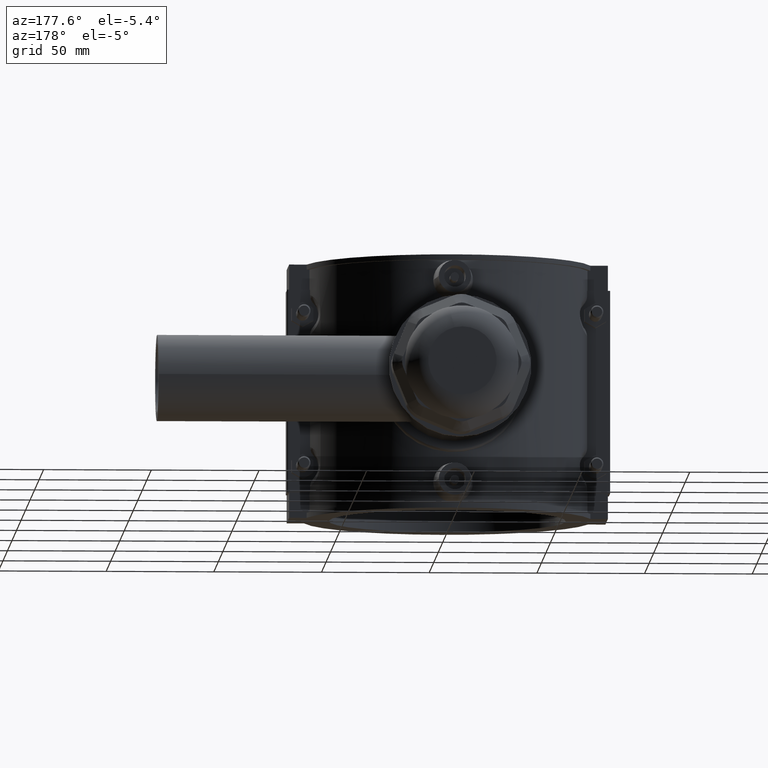
[diagram: clean part render]
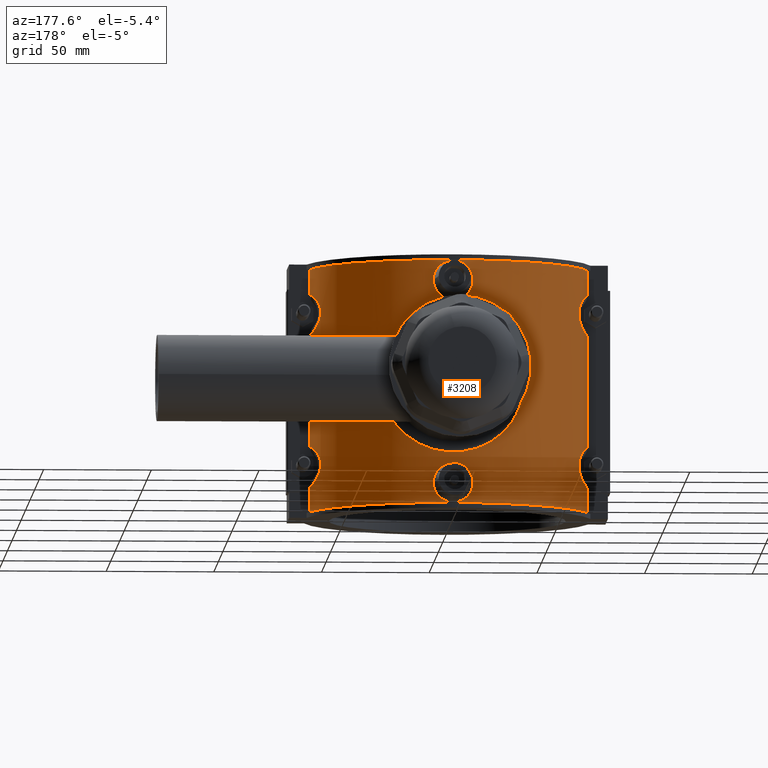
[diagram: same view with one face highlighted and labeled with its STEP entity id]
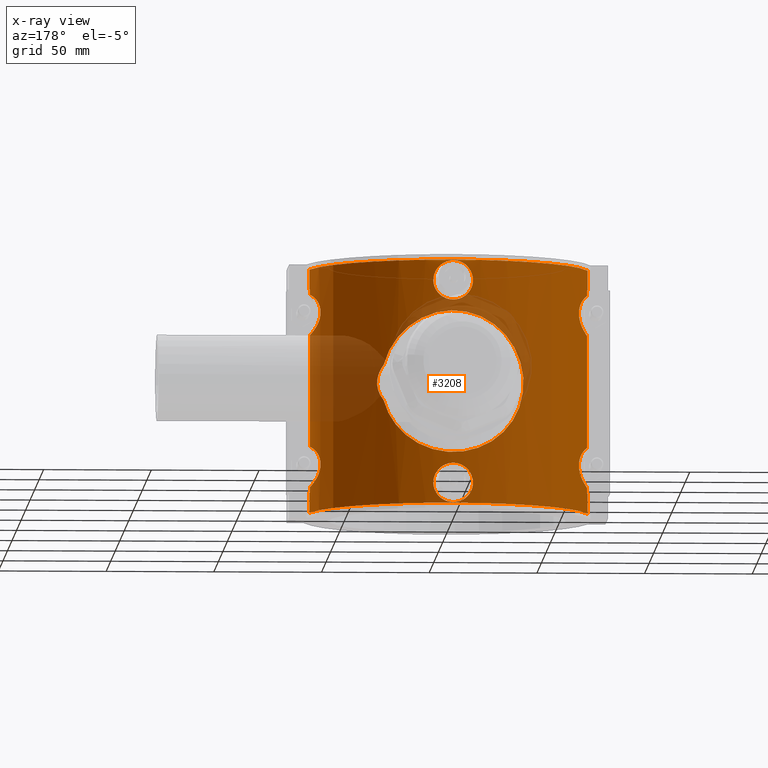
[diagram: x-ray of the same camera — body ghosted, the highlighted face saturated]
A machine part, auxiliary view. The second image highlights one B-rep face of the part: STEP entity #3208.
The next image is the same camera in x-ray: the body ghosted, the highlighted face saturated — about 16% of this face is hidden behind the body in this view.
In plain terms, the highlighted cylindrical surface (partial cylindrical patch) has radius 66 mm, axis along (0, 0, 1).
Its self-contained STEP definition (entity closure, byte-faithful):
#111=LINE('',#5472,#398);
#131=LINE('',#5555,#418);
#135=LINE('',#5563,#422);
#136=LINE('',#5567,#423);
#137=LINE('',#5582,#424);
#138=LINE('',#5599,#425);
#139=LINE('',#5602,#426);
#140=LINE('',#5606,#427);
#141=LINE('',#5622,#428);
#142=LINE('',#5639,#429);
#398=VECTOR('',#3908,9.43999999999999);
#418=VECTOR('',#3956,9.43999999999999);
#422=VECTOR('',#3962,9.43999999999999);
#423=VECTOR('',#3965,2.44823811899649);
#424=VECTOR('',#3966,52.096476237993);
#425=VECTOR('',#3967,2.4482381189965);
#426=VECTOR('',#3970,9.43999999999999);
#427=VECTOR('',#3973,2.4482381189965);
#428=VECTOR('',#3974,52.096476237993);
#429=VECTOR('',#3975,2.44823811899649);
#771=CIRCLE('',#3429,66.);
#779=CIRCLE('',#3443,66.);
#783=CIRCLE('',#3451,66.);
#784=CIRCLE('',#3452,66.);
#785=CIRCLE('',#3453,66.);
#786=CIRCLE('',#3454,66.);
#852=FACE_BOUND('',#1158,.T.);
#853=FACE_BOUND('',#1159,.T.);
#854=FACE_BOUND('',#1160,.T.);
#958=FACE_OUTER_BOUND('',#1157,.T.);
#1157=EDGE_LOOP('',(#2464,#2465,#2466,#2467,#2468,#2469,#2470,#2471,#2472,
#2473,#2474,#2475,#2476,#2477,#2478,#2479,#2480,#2481,#2482,#2483));
#1158=EDGE_LOOP('',(#2484,#2485));
#1159=EDGE_LOOP('',(#2486));
#1160=EDGE_LOOP('',(#2487));
#1324=B_SPLINE_CURVE_WITH_KNOTS('',3,(#4660,#4661,#4662,#4663,#4664,#4665,
#4666,#4667,#4668,#4669,#4670,#4671,#4672,#4673),.UNSPECIFIED.,.F.,.F.,
(4,2,2,2,2,2,4),(2.49849778127666,2.91832976958198,3.14146913307225,3.36460849656251,
3.58774786005278,3.81088722354305,4.23071921184837),.UNSPECIFIED.);
#1343=B_SPLINE_CURVE_WITH_KNOTS('',3,(#5378,#5379,#5380,#5381,#5382,#5383,
#5384,#5385,#5386,#5387,#5388,#5389,#5390,#5391,#5392,#5393,#5394,#5395,
#5396,#5397,#5398,#5399,#5400,#5401,#5402,#5403,#5404,#5405,#5406,#5407,
#5408,#5409,#5410,#5411,#5412,#5413,#5414,#5415,#5416,#5417,#5418,#5419,
#5420,#5421,#5422,#5423,#5424,#5425,#5426,#5427,#5428,#5429,#5430,#5431,
#5432,#5433,#5434,#5435,#5436,#5437,#5438,#5439),.UNSPECIFIED.,.F.,.F.,
(4,2,2,2,2,2,2,2,2,2,2,2,2,2,2,2,2,2,2,2,2,2,2,2,2,2,2,2,2,2,4),(0.804440260689885,
1.27022016290886,1.90533024436329,2.54044032581772,3.17381906630573,3.80719780679374,
4.44057654728175,5.07395528776976,5.70733402825777,6.34071276874578,6.97409150923379,
7.6074702497218,8.24258033117624,8.87769041263067,9.5128004940851,10.1479105755395,
10.783020656994,11.4181307384484,12.0532408199028,12.6883509013572,13.3217296418453,
13.9551083823333,14.5884871228213,15.2218658633093,15.8552446037973,16.4886233442853,
17.1220020847733,17.7553808252613,18.3904909067158,19.0256009881702,19.4913808903892),
 .UNSPECIFIED.);
#1346=B_SPLINE_CURVE_WITH_KNOTS('',3,(#5569,#5570,#5571,#5572,#5573,#5574,
#5575,#5576,#5577,#5578,#5579,#5580),.UNSPECIFIED.,.F.,.F.,(4,1,1,1,1,1,
1,1,1,4),(-3.87372629675472,-3.39800032867908,-2.92227436060344,-2.44654839252779,
-2.32761690050888,-1.97082242445215,-1.73295944041433,-1.49509645637651,
-1.01937048830087,-0.543644520225222),.UNSPECIFIED.);
#1347=B_SPLINE_CURVE_WITH_KNOTS('',3,(#5584,#5585,#5586,#5587,#5588,#5589,
#5590,#5591,#5592,#5593,#5594,#5595,#5596,#5597),.UNSPECIFIED.,.F.,.F.,
(4,1,1,1,1,1,1,1,1,1,1,4),(-3.87372630043149,-3.3980003318308,-2.92227436323011,
-2.68441137892976,-2.44654839462942,-2.20868541032907,-1.97082242602873,
-1.85189093387856,-1.73295944172838,-1.49509645742804,-1.01937048882735,
-0.543644520226659),.UNSPECIFIED.);
#1348=B_SPLINE_CURVE_WITH_KNOTS('',3,(#5608,#5609,#5610,#5611,#5612,#5613,
#5614,#5615,#5616,#5617,#5618,#5619,#5620),.UNSPECIFIED.,.F.,.F.,(4,1,1,
1,1,1,1,1,1,1,4),(-3.87318618089828,-3.39746020268988,-2.92173422448147,
-2.68387123537727,-2.44600824627306,-2.20814525716886,-1.97028226806466,
-1.73241927896045,-1.49455628985625,-1.01883031164784,-0.543104333439435),
 .UNSPECIFIED.);
#1349=B_SPLINE_CURVE_WITH_KNOTS('',3,(#5624,#5625,#5626,#5627,#5628,#5629,
#5630,#5631,#5632,#5633,#5634,#5635,#5636,#5637),.UNSPECIFIED.,.F.,.F.,
(4,1,1,1,1,1,1,1,1,1,1,4),(-3.87372630198934,-3.39800033316619,-2.92227436434304,
-2.68441137993146,-2.44654839551988,-2.20868541110831,-1.97082242669673,
-1.85189093449094,-1.73295944228515,-1.49509645787358,-1.01937048905042,
-0.543644520227269),.UNSPECIFIED.);
#1350=B_SPLINE_CURVE_WITH_KNOTS('',3,(#5642,#5643,#5644,#5645,#5646,#5647,
#5648,#5649,#5650,#5651,#5652,#5653,#5654,#5655,#5656,#5657,#5658,#5659,
#5660,#5661,#5662,#5663,#5664,#5665,#5666,#5667,#5668,#5669,#5670,#5671,
#5672,#5673,#5674,#5675),.UNSPECIFIED.,.T.,.F.,(4,2,2,2,2,2,2,2,2,2,2,2,
2,2,2,2,4),(0.,0.346935904986798,0.693871809973595,1.04030921731693,1.38674662466027,
1.73318403200361,2.07962143934695,2.42655734433375,2.77349324932054,3.12042915430734,
3.46736505929414,3.81380246663748,4.16023987398082,4.50667728132415,4.85311468866749,
5.20005059365429,5.54698649864109),.UNSPECIFIED.);
#1351=B_SPLINE_CURVE_WITH_KNOTS('',3,(#5677,#5678,#5679,#5680,#5681,#5682,
#5683,#5684,#5685,#5686,#5687,#5688,#5689,#5690,#5691,#5692,#5693,#5694,
#5695,#5696,#5697,#5698,#5699,#5700,#5701,#5702,#5703,#5704,#5705,#5706,
#5707,#5708,#5709,#5710),.UNSPECIFIED.,.T.,.F.,(4,2,2,2,2,2,2,2,2,2,2,2,
2,2,2,2,4),(0.,0.346935904986798,0.693871809973595,1.04030921731693,1.38674662466027,
1.73318403200361,2.07962143934695,2.42655734433375,2.77349324932054,3.12042915430734,
3.46736505929414,3.81380246663748,4.16023987398082,4.50667728132415,4.85311468866749,
5.20005059365429,5.54698649864109),.UNSPECIFIED.);
#1388=VERTEX_POINT('',#4652);
#1389=VERTEX_POINT('',#4659);
#1470=VERTEX_POINT('',#5450);
#1471=VERTEX_POINT('',#5452);
#1478=VERTEX_POINT('',#5471);
#1498=VERTEX_POINT('',#5538);
#1499=VERTEX_POINT('',#5540);
#1503=VERTEX_POINT('',#5554);
#1506=VERTEX_POINT('',#5562);
#1507=VERTEX_POINT('',#5564);
#1508=VERTEX_POINT('',#5566);
#1509=VERTEX_POINT('',#5568);
#1510=VERTEX_POINT('',#5581);
#1511=VERTEX_POINT('',#5583);
#1512=VERTEX_POINT('',#5598);
#1513=VERTEX_POINT('',#5601);
#1514=VERTEX_POINT('',#5603);
#1515=VERTEX_POINT('',#5605);
#1516=VERTEX_POINT('',#5607);
#1517=VERTEX_POINT('',#5621);
#1518=VERTEX_POINT('',#5623);
#1519=VERTEX_POINT('',#5638);
#1520=VERTEX_POINT('',#5641);
#1521=VERTEX_POINT('',#5676);
#1698=EDGE_CURVE('',#1389,#1388,#1324,.T.);
#1819=EDGE_CURVE('',#1388,#1389,#1343,.T.);
#1826=EDGE_CURVE('',#1470,#1471,#771,.T.);
#1834=EDGE_CURVE('',#1478,#1470,#111,.T.);
#1857=EDGE_CURVE('',#1499,#1498,#779,.T.);
#1864=EDGE_CURVE('',#1499,#1503,#131,.T.);
#1868=EDGE_CURVE('',#1506,#1471,#135,.T.);
#1869=EDGE_CURVE('',#1506,#1507,#783,.T.);
#1870=EDGE_CURVE('',#1507,#1508,#136,.T.);
#1871=EDGE_CURVE('',#1509,#1508,#1346,.T.);
#1872=EDGE_CURVE('',#1509,#1510,#137,.T.);
#1873=EDGE_CURVE('',#1511,#1510,#1347,.T.);
#1874=EDGE_CURVE('',#1511,#1512,#138,.T.);
#1875=EDGE_CURVE('',#1512,#1503,#784,.T.);
#1876=EDGE_CURVE('',#1498,#1513,#139,.T.);
#1877=EDGE_CURVE('',#1513,#1514,#785,.T.);
#1878=EDGE_CURVE('',#1514,#1515,#140,.T.);
#1879=EDGE_CURVE('',#1516,#1515,#1348,.T.);
#1880=EDGE_CURVE('',#1516,#1517,#141,.T.);
#1881=EDGE_CURVE('',#1518,#1517,#1349,.T.);
#1882=EDGE_CURVE('',#1518,#1519,#142,.T.);
#1883=EDGE_CURVE('',#1519,#1478,#786,.T.);
#1884=EDGE_CURVE('',#1520,#1520,#1350,.T.);
#1885=EDGE_CURVE('',#1521,#1521,#1351,.T.);
#2464=ORIENTED_EDGE('',*,*,#1826,.T.);
#2465=ORIENTED_EDGE('',*,*,#1868,.F.);
#2466=ORIENTED_EDGE('',*,*,#1869,.T.);
#2467=ORIENTED_EDGE('',*,*,#1870,.T.);
#2468=ORIENTED_EDGE('',*,*,#1871,.F.);
#2469=ORIENTED_EDGE('',*,*,#1872,.T.);
#2470=ORIENTED_EDGE('',*,*,#1873,.F.);
#2471=ORIENTED_EDGE('',*,*,#1874,.T.);
#2472=ORIENTED_EDGE('',*,*,#1875,.T.);
#2473=ORIENTED_EDGE('',*,*,#1864,.F.);
#2474=ORIENTED_EDGE('',*,*,#1857,.T.);
#2475=ORIENTED_EDGE('',*,*,#1876,.T.);
#2476=ORIENTED_EDGE('',*,*,#1877,.T.);
#2477=ORIENTED_EDGE('',*,*,#1878,.T.);
#2478=ORIENTED_EDGE('',*,*,#1879,.F.);
#2479=ORIENTED_EDGE('',*,*,#1880,.T.);
#2480=ORIENTED_EDGE('',*,*,#1881,.F.);
#2481=ORIENTED_EDGE('',*,*,#1882,.T.);
#2482=ORIENTED_EDGE('',*,*,#1883,.T.);
#2483=ORIENTED_EDGE('',*,*,#1834,.T.);
#2484=ORIENTED_EDGE('',*,*,#1698,.T.);
#2485=ORIENTED_EDGE('',*,*,#1819,.T.);
#2486=ORIENTED_EDGE('',*,*,#1884,.T.);
#2487=ORIENTED_EDGE('',*,*,#1885,.T.);
#3115=CYLINDRICAL_SURFACE('',#3450,66.);
#3208=ADVANCED_FACE('',(#958,#852,#853,#854),#3115,.T.);
#3429=AXIS2_PLACEMENT_3D('',#5454,#3890,#3891);
#3443=AXIS2_PLACEMENT_3D('',#5541,#3939,#3940);
#3450=AXIS2_PLACEMENT_3D('',#5561,#3960,#3961);
#3451=AXIS2_PLACEMENT_3D('',#5565,#3963,#3964);
#3452=AXIS2_PLACEMENT_3D('',#5600,#3968,#3969);
#3453=AXIS2_PLACEMENT_3D('',#5604,#3971,#3972);
#3454=AXIS2_PLACEMENT_3D('',#5640,#3976,#3977);
#3890=DIRECTION('center_axis',(0.,0.,1.));
#3891=DIRECTION('ref_axis',(1.,0.,0.));
#3908=DIRECTION('',(0.,0.,-1.));
#3939=DIRECTION('center_axis',(0.,0.,-1.));
#3940=DIRECTION('ref_axis',(1.,0.,0.));
#3956=DIRECTION('',(0.,0.,-1.));
#3960=DIRECTION('center_axis',(0.,0.,1.));
#3961=DIRECTION('ref_axis',(1.,0.,0.));
#3962=DIRECTION('',(0.,0.,-1.));
#3963=DIRECTION('center_axis',(0.,0.,-1.));
#3964=DIRECTION('ref_axis',(1.,0.,0.));
#3965=DIRECTION('',(0.,0.,1.));
#3966=DIRECTION('',(0.,0.,1.));
#3967=DIRECTION('',(0.,0.,1.));
#3968=DIRECTION('center_axis',(0.,0.,1.));
#3969=DIRECTION('ref_axis',(1.,0.,0.));
#3970=DIRECTION('',(0.,0.,-1.));
#3971=DIRECTION('center_axis',(0.,0.,1.));
#3972=DIRECTION('ref_axis',(1.,0.,0.));
#3973=DIRECTION('',(0.,0.,-1.));
#3974=DIRECTION('',(0.,0.,-1.));
#3975=DIRECTION('',(0.,0.,-1.));
#3976=DIRECTION('center_axis',(0.,0.,-1.));
#3977=DIRECTION('ref_axis',(1.,0.,0.));
#4652=CARTESIAN_POINT('',(31.9778465178323,57.735754372894,8.14968294007113));
#4659=CARTESIAN_POINT('',(31.9778465178323,57.735754372894,-8.14968294007112));
#4660=CARTESIAN_POINT('Ctrl Pts',(31.9778464990607,57.7357543752787,-8.14968292388411));
#4661=CARTESIAN_POINT('Ctrl Pts',(32.8150198721888,57.2720728678893,-7.11052679698972));
#4662=CARTESIAN_POINT('Ctrl Pts',(33.5711574514838,56.8273418257647,-5.86118283931131));
#4663=CARTESIAN_POINT('Ctrl Pts',(34.368122353704,56.3465746627467,-3.78049584223385));
#4664=CARTESIAN_POINT('Ctrl Pts',(34.5806118177586,56.2157311319525,-3.02763198669416));
#4665=CARTESIAN_POINT('Ctrl Pts',(34.8608203458049,56.0423977455289,-1.50929204629565));
#4666=CARTESIAN_POINT('Ctrl Pts',(34.928498393146,56.,-0.743797878300887));
#4667=CARTESIAN_POINT('Ctrl Pts',(34.928498393146,56.,0.74379787830089));
#4668=CARTESIAN_POINT('Ctrl Pts',(34.8608203458049,56.0423977455289,1.50929204629565));
#4669=CARTESIAN_POINT('Ctrl Pts',(34.5806118177586,56.2157311319525,3.02763198669417));
#4670=CARTESIAN_POINT('Ctrl Pts',(34.368122353704,56.3465746627467,3.78049584223385));
#4671=CARTESIAN_POINT('Ctrl Pts',(33.5711574514838,56.8273418257647,5.86118283931132));
#4672=CARTESIAN_POINT('Ctrl Pts',(32.8150198721888,57.2720728678893,7.11052679698973));
#4673=CARTESIAN_POINT('Ctrl Pts',(31.9778464990607,57.7357543752787,8.14968292388411));
#5378=CARTESIAN_POINT('Ctrl Pts',(31.9778465178323,57.7357543648817,8.14968294364627));
#5379=CARTESIAN_POINT('Ctrl Pts',(31.5798771840876,57.956175876877,9.71124090378925));
#5380=CARTESIAN_POINT('Ctrl Pts',(31.0655032976453,58.2359393731029,11.248357466949));
#5381=CARTESIAN_POINT('Ctrl Pts',(29.5974666379049,58.9991611550135,14.7583068582407));
#5382=CARTESIAN_POINT('Ctrl Pts',(28.5495315090571,59.5203710622391,16.6898573525336));
#5383=CARTESIAN_POINT('Ctrl Pts',(26.1413356761477,60.6166717119623,20.2548181302783));
#5384=CARTESIAN_POINT('Ctrl Pts',(24.7807330537401,61.1907311554408,21.888314504572));
#5385=CARTESIAN_POINT('Ctrl Pts',(21.8922569413814,62.2824725070482,24.7767906169308));
#5386=CARTESIAN_POINT('Ctrl Pts',(20.2607144952408,62.8406910221601,26.1368297552177));
#5387=CARTESIAN_POINT('Ctrl Pts',(16.6949541325008,63.8805722144276,28.5466097514241));
#5388=CARTESIAN_POINT('Ctrl Pts',(14.7606306361138,64.36143855462,29.5965379515537));
#5389=CARTESIAN_POINT('Ctrl Pts',(10.7050018727928,65.1588361552544,31.2927185796387));
#5390=CARTESIAN_POINT('Ctrl Pts',(8.57983006572046,65.4755408413926,31.9403261895683));
#5391=CARTESIAN_POINT('Ctrl Pts',(4.28300180131361,65.89625048521,32.7941125301766));
#5392=CARTESIAN_POINT('Ctrl Pts',(2.11126246829337,66.,33.));
#5393=CARTESIAN_POINT('Ctrl Pts',(-2.11126246829336,66.,33.));
#5394=CARTESIAN_POINT('Ctrl Pts',(-4.28300180131361,65.89625048521,32.7941125301766));
#5395=CARTESIAN_POINT('Ctrl Pts',(-8.57983006572046,65.4755408413926,31.9403261895683));
#5396=CARTESIAN_POINT('Ctrl Pts',(-10.7050018727928,65.1588361552544,31.2927185796387));
#5397=CARTESIAN_POINT('Ctrl Pts',(-14.7606306361138,64.36143855462,29.5965379515537));
#5398=CARTESIAN_POINT('Ctrl Pts',(-16.6949541325008,63.8805722144276,28.5466097514241));
#5399=CARTESIAN_POINT('Ctrl Pts',(-20.2607144952408,62.8406910221602,26.1368297552177));
#5400=CARTESIAN_POINT('Ctrl Pts',(-21.8922569413814,62.2824725070482,24.7767906169308));
#5401=CARTESIAN_POINT('Ctrl Pts',(-24.7807330537401,61.1907311554408,21.888314504572));
#5402=CARTESIAN_POINT('Ctrl Pts',(-26.1413356761477,60.6166717119623,20.2548181302783));
#5403=CARTESIAN_POINT('Ctrl Pts',(-28.5495315090571,59.5203710622391,16.6898573525336));
#5404=CARTESIAN_POINT('Ctrl Pts',(-29.5974666379049,58.9991611550135,14.7583068582407));
#5405=CARTESIAN_POINT('Ctrl Pts',(-31.2913050711237,58.1185466426358,10.7084848472058));
#5406=CARTESIAN_POINT('Ctrl Pts',(-31.9385571244343,57.7595786156519,8.58628352636247));
#5407=CARTESIAN_POINT('Ctrl Pts',(-32.7930803921507,57.2787415408136,4.29063786119956));
#5408=CARTESIAN_POINT('Ctrl Pts',(-33.,57.157676649773,2.11703360484811));
#5409=CARTESIAN_POINT('Ctrl Pts',(-33.,57.157676649773,-2.1170336048481));
#5410=CARTESIAN_POINT('Ctrl Pts',(-32.7930803921507,57.2787415408136,-4.29063786119955));
#5411=CARTESIAN_POINT('Ctrl Pts',(-31.9385571244343,57.7595786156519,-8.58628352636245));
#5412=CARTESIAN_POINT('Ctrl Pts',(-31.2913050711237,58.1185466426358,-10.7084848472058));
#5413=CARTESIAN_POINT('Ctrl Pts',(-29.5974666379049,58.9991611550135,-14.7583068582407));
#5414=CARTESIAN_POINT('Ctrl Pts',(-28.5495315090571,59.5203710622391,-16.6898573525336));
#5415=CARTESIAN_POINT('Ctrl Pts',(-26.1413356761477,60.6166717119623,-20.2548181302783));
#5416=CARTESIAN_POINT('Ctrl Pts',(-24.7807330537401,61.1907311554408,-21.888314504572));
#5417=CARTESIAN_POINT('Ctrl Pts',(-21.8922569413814,62.2824725070482,-24.7767906169308));
#5418=CARTESIAN_POINT('Ctrl Pts',(-20.2607144952408,62.8406910221601,-26.1368297552177));
#5419=CARTESIAN_POINT('Ctrl Pts',(-16.6949541325008,63.8805722144276,-28.5466097514241));
#5420=CARTESIAN_POINT('Ctrl Pts',(-14.7606306361138,64.36143855462,-29.5965379515537));
#5421=CARTESIAN_POINT('Ctrl Pts',(-10.7050018727928,65.1588361552544,-31.2927185796387));
#5422=CARTESIAN_POINT('Ctrl Pts',(-8.57983006572046,65.4755408413926,-31.9403261895683));
#5423=CARTESIAN_POINT('Ctrl Pts',(-4.28300180131361,65.89625048521,-32.7941125301766));
#5424=CARTESIAN_POINT('Ctrl Pts',(-2.11126246829337,66.,-33.));
#5425=CARTESIAN_POINT('Ctrl Pts',(2.11126246829336,66.,-33.));
#5426=CARTESIAN_POINT('Ctrl Pts',(4.28300180131361,65.89625048521,-32.7941125301766));
#5427=CARTESIAN_POINT('Ctrl Pts',(8.57983006572047,65.4755408413926,-31.9403261895683));
#5428=CARTESIAN_POINT('Ctrl Pts',(10.7050018727928,65.1588361552544,-31.2927185796387));
#5429=CARTESIAN_POINT('Ctrl Pts',(14.7606306361138,64.36143855462,-29.5965379515537));
#5430=CARTESIAN_POINT('Ctrl Pts',(16.6949541325008,63.8805722144276,-28.5466097514241));
#5431=CARTESIAN_POINT('Ctrl Pts',(20.2607144952408,62.8406910221602,-26.1368297552177));
#5432=CARTESIAN_POINT('Ctrl Pts',(21.8922569413814,62.2824725070482,-24.7767906169308));
#5433=CARTESIAN_POINT('Ctrl Pts',(24.7807330537401,61.1907311554408,-21.888314504572));
#5434=CARTESIAN_POINT('Ctrl Pts',(26.1413356761477,60.6166717119623,-20.2548181302783));
#5435=CARTESIAN_POINT('Ctrl Pts',(28.5495315090571,59.5203710622391,-16.6898573525336));
#5436=CARTESIAN_POINT('Ctrl Pts',(29.5974666379049,58.9991611550135,-14.7583068582407));
#5437=CARTESIAN_POINT('Ctrl Pts',(31.0655032976453,58.2359393731029,-11.248357466949));
#5438=CARTESIAN_POINT('Ctrl Pts',(31.5798771840876,57.956175876877,-9.71124090378924));
#5439=CARTESIAN_POINT('Ctrl Pts',(31.9778465178323,57.7357543648817,-8.14968294364626));
#5450=CARTESIAN_POINT('',(64.5518202686803,13.75,-56.64));
#5452=CARTESIAN_POINT('',(-64.5518202686803,13.75,-56.64));
#5454=CARTESIAN_POINT('Origin',(0.,0.,-56.64));
#5471=CARTESIAN_POINT('',(64.5518202686802,13.7500000000001,-47.2));
#5472=CARTESIAN_POINT('',(64.5518202686803,13.75,0.));
#5538=CARTESIAN_POINT('',(64.5518202686803,13.75,56.64));
#5540=CARTESIAN_POINT('',(-64.5518202686803,13.75,56.64));
#5541=CARTESIAN_POINT('Origin',(0.,0.,56.64));
#5554=CARTESIAN_POINT('',(-64.5518202686802,13.7500000000001,47.2));
#5555=CARTESIAN_POINT('',(-64.5518202686803,13.75,0.));
#5561=CARTESIAN_POINT('Origin',(0.,0.,0.));
#5562=CARTESIAN_POINT('',(-64.5518202686802,13.7500000000001,-47.2));
#5563=CARTESIAN_POINT('',(-64.5518202686803,13.75,0.));
#5564=CARTESIAN_POINT('',(-64.3306886330311,14.7500000000003,-47.2));
#5565=CARTESIAN_POINT('Origin',(0.,0.,-47.2));
#5566=CARTESIAN_POINT('',(-64.3306886330311,14.7500000000003,-44.7517618810035));
#5567=CARTESIAN_POINT('',(-64.3306886330311,14.7500000000003,0.));
#5568=CARTESIAN_POINT('',(-64.3306886330311,14.7500000000003,-26.0482381189965));
#5569=CARTESIAN_POINT('Ctrl Pts',(-64.3306886330311,14.7500000000003,-26.0482381189965));
#5570=CARTESIAN_POINT('Ctrl Pts',(-63.9527912554927,16.3981626121804,-26.3827329004399));
#5571=CARTESIAN_POINT('Ctrl Pts',(-63.0778690868478,19.6261025075132,-27.2310383266353));
#5572=CARTESIAN_POINT('Ctrl Pts',(-61.5137264809278,24.0558903026526,-29.3000957522392));
#5573=CARTESIAN_POINT('Ctrl Pts',(-60.3897986198586,26.6421844238724,-31.9335356590793));
#5574=CARTESIAN_POINT('Ctrl Pts',(-59.9224916991423,27.6653952476638,-34.9717815952484));
#5575=CARTESIAN_POINT('Ctrl Pts',(-60.0554425576268,27.3816590012757,-37.4440252437804));
#5576=CARTESIAN_POINT('Ctrl Pts',(-60.7699777265275,25.7702881327455,-39.7566764526898));
#5577=CARTESIAN_POINT('Ctrl Pts',(-61.7657357889132,23.3326659218883,-41.8352017051385));
#5578=CARTESIAN_POINT('Ctrl Pts',(-63.0806192708269,19.6212087501384,-43.5753048876795));
#5579=CARTESIAN_POINT('Ctrl Pts',(-63.9527912554927,16.3981626121804,-44.4172670995602));
#5580=CARTESIAN_POINT('Ctrl Pts',(-64.3306886330311,14.7500000000003,-44.7517618810035));
#5581=CARTESIAN_POINT('',(-64.3306886330311,14.7500000000003,26.0482381189965));
#5582=CARTESIAN_POINT('',(-64.3306886330311,14.7500000000003,0.));
#5583=CARTESIAN_POINT('',(-64.3306886330311,14.7500000000003,44.7517618810035));
#5584=CARTESIAN_POINT('Ctrl Pts',(-64.3306886330311,14.7500000000003,44.7517618810035));
#5585=CARTESIAN_POINT('Ctrl Pts',(-63.9527912572163,16.3981626046634,44.4172671010857));
#5586=CARTESIAN_POINT('Ctrl Pts',(-63.0798147120383,19.6225851019796,43.5753357245552));
#5587=CARTESIAN_POINT('Ctrl Pts',(-61.7685213603749,23.3278982985863,41.834867320585));
#5588=CARTESIAN_POINT('Ctrl Pts',(-60.768119001488,25.7734565677027,39.7567991110615));
#5589=CARTESIAN_POINT('Ctrl Pts',(-60.1667084578027,27.1355063513127,37.7748837116343));
#5590=CARTESIAN_POINT('Ctrl Pts',(-59.9165282850681,27.6756756011679,35.3998998402149));
#5591=CARTESIAN_POINT('Ctrl Pts',(-60.1248627173646,27.2257424100493,33.4215328100373));
#5592=CARTESIAN_POINT('Ctrl Pts',(-60.4687588967187,26.4521723165861,32.0345097618895));
#5593=CARTESIAN_POINT('Ctrl Pts',(-60.8927014330096,25.4685179279021,30.782923973912));
#5594=CARTESIAN_POINT('Ctrl Pts',(-61.7684514854648,23.3278392592335,28.9644641587819));
#5595=CARTESIAN_POINT('Ctrl Pts',(-63.0818663583026,19.6193517478855,27.2259037664876));
#5596=CARTESIAN_POINT('Ctrl Pts',(-63.9527912572163,16.3981626046634,26.3827328989143));
#5597=CARTESIAN_POINT('Ctrl Pts',(-64.3306886330311,14.7500000000003,26.0482381189965));
#5598=CARTESIAN_POINT('',(-64.3306886330311,14.7500000000003,47.2));
#5599=CARTESIAN_POINT('',(-64.3306886330311,14.7500000000003,0.));
#5600=CARTESIAN_POINT('Origin',(0.,0.,47.2));
#5601=CARTESIAN_POINT('',(64.5518202686802,13.7500000000001,47.2));
#5602=CARTESIAN_POINT('',(64.5518202686803,13.75,0.));
#5603=CARTESIAN_POINT('',(64.3306886330311,14.7500000000003,47.2));
#5604=CARTESIAN_POINT('Origin',(0.,0.,47.2));
#5605=CARTESIAN_POINT('',(64.3306886330311,14.7500000000003,44.7517618810035));
#5606=CARTESIAN_POINT('',(64.3306886330311,14.7500000000003,0.));
#5607=CARTESIAN_POINT('',(64.3306886330311,14.7500000000003,26.0482381189965));
#5608=CARTESIAN_POINT('Ctrl Pts',(64.3306886330311,14.7500000000003,26.0482381189965));
#5609=CARTESIAN_POINT('Ctrl Pts',(63.952791309994,16.3981623744786,26.3827328521982));
#5610=CARTESIAN_POINT('Ctrl Pts',(63.0799501970877,19.6223641748561,27.2247398125881));
#5611=CARTESIAN_POINT('Ctrl Pts',(61.7690149009054,23.3269890739918,28.9649255324313));
#5612=CARTESIAN_POINT('Ctrl Pts',(60.7688438422129,25.7722361974724,31.0434417467119));
#5613=CARTESIAN_POINT('Ctrl Pts',(60.1680089295915,27.1333112507977,33.0259091161999));
#5614=CARTESIAN_POINT('Ctrl Pts',(59.9162757439481,27.676117016215,35.3996289848923));
#5615=CARTESIAN_POINT('Ctrl Pts',(60.1670476180397,27.1349532376828,37.774845601644));
#5616=CARTESIAN_POINT('Ctrl Pts',(60.7681726460776,25.7733774635095,39.7567281726444));
#5617=CARTESIAN_POINT('Ctrl Pts',(61.7686494910263,23.3276910734894,41.8348509701333));
#5618=CARTESIAN_POINT('Ctrl Pts',(63.0797928410758,19.6226227709339,43.5753333933684));
#5619=CARTESIAN_POINT('Ctrl Pts',(63.952791309994,16.3981623744787,44.4172671478017));
#5620=CARTESIAN_POINT('Ctrl Pts',(64.3306886330311,14.7500000000003,44.7517618810035));
#5621=CARTESIAN_POINT('',(64.3306886330311,14.7500000000003,-26.0482381189965));
#5622=CARTESIAN_POINT('',(64.3306886330311,14.7500000000003,0.));
#5623=CARTESIAN_POINT('',(64.3306886330311,14.7500000000003,-44.7517618810035));
#5624=CARTESIAN_POINT('Ctrl Pts',(64.3306886330311,14.7500000000003,-44.7517618810035));
#5625=CARTESIAN_POINT('Ctrl Pts',(63.9527912579466,16.3981626014784,-44.4172671017321));
#5626=CARTESIAN_POINT('Ctrl Pts',(63.0798147157983,19.6225850900723,-43.575335728822));
#5627=CARTESIAN_POINT('Ctrl Pts',(61.7685213610513,23.3278982974153,-41.8348673221215));
#5628=CARTESIAN_POINT('Ctrl Pts',(60.7681190021769,25.773456566055,-39.7567991128281));
#5629=CARTESIAN_POINT('Ctrl Pts',(60.1667084578722,27.1355063513081,-37.77488371266));
#5630=CARTESIAN_POINT('Ctrl Pts',(59.9165282849716,27.6756756014109,-35.3998998402089));
#5631=CARTESIAN_POINT('Ctrl Pts',(60.1248627174564,27.2257424098971,-33.4215328091261));
#5632=CARTESIAN_POINT('Ctrl Pts',(60.4687588970809,26.4521723158343,-32.0345097604762));
#5633=CARTESIAN_POINT('Ctrl Pts',(60.8927014337618,25.4685179260804,-30.7829239720969));
#5634=CARTESIAN_POINT('Ctrl Pts',(61.768451486373,23.3278392572585,-28.9644641569858));
#5635=CARTESIAN_POINT('Ctrl Pts',(63.0818663616767,19.619351737298,-27.2259037626193));
#5636=CARTESIAN_POINT('Ctrl Pts',(63.9527912579466,16.3981626014784,-26.3827328982679));
#5637=CARTESIAN_POINT('Ctrl Pts',(64.3306886330311,14.7500000000003,-26.0482381189965));
#5638=CARTESIAN_POINT('',(64.3306886330311,14.7500000000003,-47.2));
#5639=CARTESIAN_POINT('',(64.3306886330311,14.7500000000003,0.));
#5640=CARTESIAN_POINT('Origin',(0.,0.,-47.2));
#5641=CARTESIAN_POINT('',(9.21889149209569,65.3529803425748,-47.2));
#5642=CARTESIAN_POINT('Ctrl Pts',(9.21889149209569,65.3529803425748,-47.2));
#5643=CARTESIAN_POINT('Ctrl Pts',(9.21889149209569,65.3529803425748,-46.0435469833774));
#5644=CARTESIAN_POINT('Ctrl Pts',(8.98509660190144,65.3872751603227,-44.8119297781224));
#5645=CARTESIAN_POINT('Ctrl Pts',(8.03868301556763,65.5103601412207,-42.5506935355608));
#5646=CARTESIAN_POINT('Ctrl Pts',(7.32619281653862,65.5972977842866,-41.5209202636936));
#5647=CARTESIAN_POINT('Ctrl Pts',(5.68787926987002,65.7595974634724,-39.8987494664931));
#5648=CARTESIAN_POINT('Ctrl Pts',(4.65283917326547,65.8455692822516,-39.1970628078988));
#5649=CARTESIAN_POINT('Ctrl Pts',(2.38634954577356,65.9666070224349,-38.2665218689298));
#5650=CARTESIAN_POINT('Ctrl Pts',(1.15479135781113,66.,-38.0377153930075));
#5651=CARTESIAN_POINT('Ctrl Pts',(-1.15479135781113,66.,-38.0377153930075));
#5652=CARTESIAN_POINT('Ctrl Pts',(-2.38634954577356,65.9666070224349,-38.2665218689298));
#5653=CARTESIAN_POINT('Ctrl Pts',(-4.65283917326547,65.8455692822516,-39.1970628078988));
#5654=CARTESIAN_POINT('Ctrl Pts',(-5.68787926987002,65.7595974634724,-39.8987494664931));
#5655=CARTESIAN_POINT('Ctrl Pts',(-7.32619281653862,65.5972977842866,-41.5209202636936));
#5656=CARTESIAN_POINT('Ctrl Pts',(-8.03868301556763,65.5103601412207,-42.5506935355608));
#5657=CARTESIAN_POINT('Ctrl Pts',(-8.98509660190144,65.3872751603227,-44.8119297781224));
#5658=CARTESIAN_POINT('Ctrl Pts',(-9.21889149209569,65.3529803425748,-46.0435469833774));
#5659=CARTESIAN_POINT('Ctrl Pts',(-9.21889149209569,65.3529803425748,-48.3564530166227));
#5660=CARTESIAN_POINT('Ctrl Pts',(-8.98509660190144,65.3872751603227,-49.5880702218776));
#5661=CARTESIAN_POINT('Ctrl Pts',(-8.03868301556763,65.5103601412207,-51.8493064644393));
#5662=CARTESIAN_POINT('Ctrl Pts',(-7.32619281653862,65.5972977842866,-52.8790797363064));
#5663=CARTESIAN_POINT('Ctrl Pts',(-5.68787926987002,65.7595974634724,-54.501250533507));
#5664=CARTESIAN_POINT('Ctrl Pts',(-4.65283917326547,65.8455692822516,-55.2029371921012));
#5665=CARTESIAN_POINT('Ctrl Pts',(-2.38634954577356,65.9666070224349,-56.1334781310702));
#5666=CARTESIAN_POINT('Ctrl Pts',(-1.15479135781113,66.,-56.3622846069926));
#5667=CARTESIAN_POINT('Ctrl Pts',(1.15479135781112,66.,-56.3622846069926));
#5668=CARTESIAN_POINT('Ctrl Pts',(2.38634954577355,65.9666070224349,-56.1334781310702));
#5669=CARTESIAN_POINT('Ctrl Pts',(4.65283917326546,65.8455692822516,-55.2029371921012));
#5670=CARTESIAN_POINT('Ctrl Pts',(5.68787926987002,65.7595974634724,-54.501250533507));
#5671=CARTESIAN_POINT('Ctrl Pts',(7.32619281653862,65.5972977842866,-52.8790797363065));
#5672=CARTESIAN_POINT('Ctrl Pts',(8.03868301556763,65.5103601412207,-51.8493064644393));
#5673=CARTESIAN_POINT('Ctrl Pts',(8.98509660190144,65.3872751603227,-49.5880702218776));
#5674=CARTESIAN_POINT('Ctrl Pts',(9.21889149209569,65.3529803425748,-48.3564530166227));
#5675=CARTESIAN_POINT('Ctrl Pts',(9.21889149209569,65.3529803425748,-47.2));
#5676=CARTESIAN_POINT('',(9.21889149209569,65.3529803425748,47.2));
#5677=CARTESIAN_POINT('Ctrl Pts',(-9.21889149209569,65.3529803425748,47.2));
#5678=CARTESIAN_POINT('Ctrl Pts',(-9.21889149209569,65.3529803425748,46.0435469833774));
#5679=CARTESIAN_POINT('Ctrl Pts',(-8.98509660190144,65.3872751603227,44.8119297781224));
#5680=CARTESIAN_POINT('Ctrl Pts',(-8.03868301556763,65.5103601412207,42.5506935355608));
#5681=CARTESIAN_POINT('Ctrl Pts',(-7.32619281653862,65.5972977842866,41.5209202636936));
#5682=CARTESIAN_POINT('Ctrl Pts',(-5.68787926987002,65.7595974634724,39.8987494664931));
#5683=CARTESIAN_POINT('Ctrl Pts',(-4.65283917326548,65.8455692822516,39.1970628078988));
#5684=CARTESIAN_POINT('Ctrl Pts',(-2.38634954577356,65.9666070224349,38.2665218689298));
#5685=CARTESIAN_POINT('Ctrl Pts',(-1.15479135781113,66.,38.0377153930075));
#5686=CARTESIAN_POINT('Ctrl Pts',(1.15479135781113,66.,38.0377153930075));
#5687=CARTESIAN_POINT('Ctrl Pts',(2.38634954577356,65.9666070224349,38.2665218689298));
#5688=CARTESIAN_POINT('Ctrl Pts',(4.65283917326547,65.8455692822516,39.1970628078988));
#5689=CARTESIAN_POINT('Ctrl Pts',(5.68787926987002,65.7595974634724,39.8987494664931));
#5690=CARTESIAN_POINT('Ctrl Pts',(7.32619281653862,65.5972977842866,41.5209202636936));
#5691=CARTESIAN_POINT('Ctrl Pts',(8.03868301556763,65.5103601412207,42.5506935355608));
#5692=CARTESIAN_POINT('Ctrl Pts',(8.98509660190144,65.3872751603227,44.8119297781224));
#5693=CARTESIAN_POINT('Ctrl Pts',(9.21889149209569,65.3529803425748,46.0435469833774));
#5694=CARTESIAN_POINT('Ctrl Pts',(9.21889149209569,65.3529803425748,48.3564530166227));
#5695=CARTESIAN_POINT('Ctrl Pts',(8.98509660190144,65.3872751603227,49.5880702218776));
#5696=CARTESIAN_POINT('Ctrl Pts',(8.03868301556763,65.5103601412207,51.8493064644393));
#5697=CARTESIAN_POINT('Ctrl Pts',(7.32619281653862,65.5972977842866,52.8790797363064));
#5698=CARTESIAN_POINT('Ctrl Pts',(5.68787926987002,65.7595974634724,54.501250533507));
#5699=CARTESIAN_POINT('Ctrl Pts',(4.65283917326547,65.8455692822516,55.2029371921012));
#5700=CARTESIAN_POINT('Ctrl Pts',(2.38634954577356,65.9666070224349,56.1334781310702));
#5701=CARTESIAN_POINT('Ctrl Pts',(1.15479135781113,66.,56.3622846069926));
#5702=CARTESIAN_POINT('Ctrl Pts',(-1.15479135781113,66.,56.3622846069926));
#5703=CARTESIAN_POINT('Ctrl Pts',(-2.38634954577355,65.9666070224349,56.1334781310702));
#5704=CARTESIAN_POINT('Ctrl Pts',(-4.65283917326547,65.8455692822516,55.2029371921012));
#5705=CARTESIAN_POINT('Ctrl Pts',(-5.68787926987002,65.7595974634724,54.501250533507));
#5706=CARTESIAN_POINT('Ctrl Pts',(-7.32619281653862,65.5972977842866,52.8790797363065));
#5707=CARTESIAN_POINT('Ctrl Pts',(-8.03868301556763,65.5103601412207,51.8493064644393));
#5708=CARTESIAN_POINT('Ctrl Pts',(-8.98509660190144,65.3872751603227,49.5880702218776));
#5709=CARTESIAN_POINT('Ctrl Pts',(-9.21889149209569,65.3529803425748,48.3564530166227));
#5710=CARTESIAN_POINT('Ctrl Pts',(-9.21889149209569,65.3529803425748,47.2));